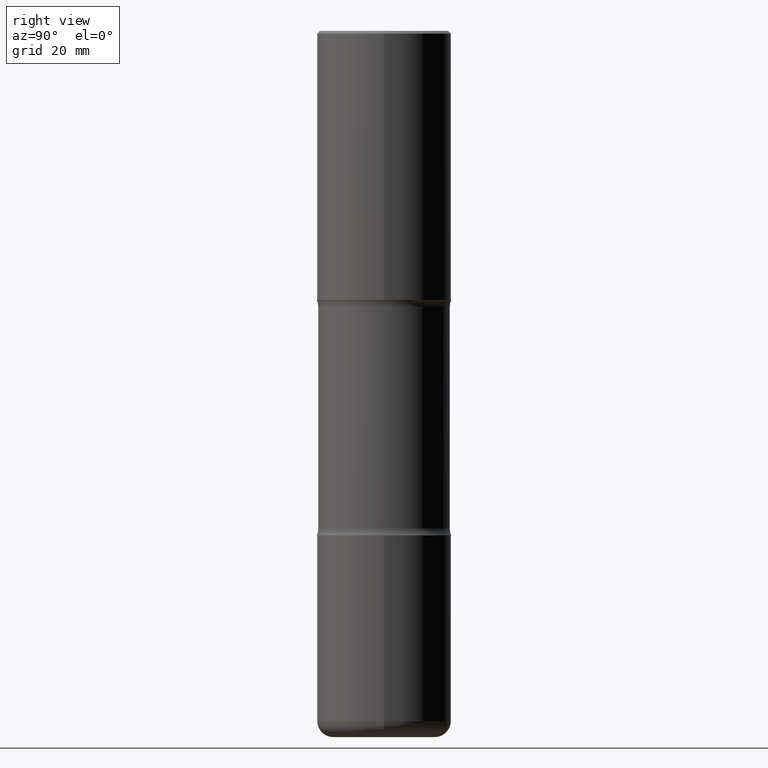
[diagram: clean part render]
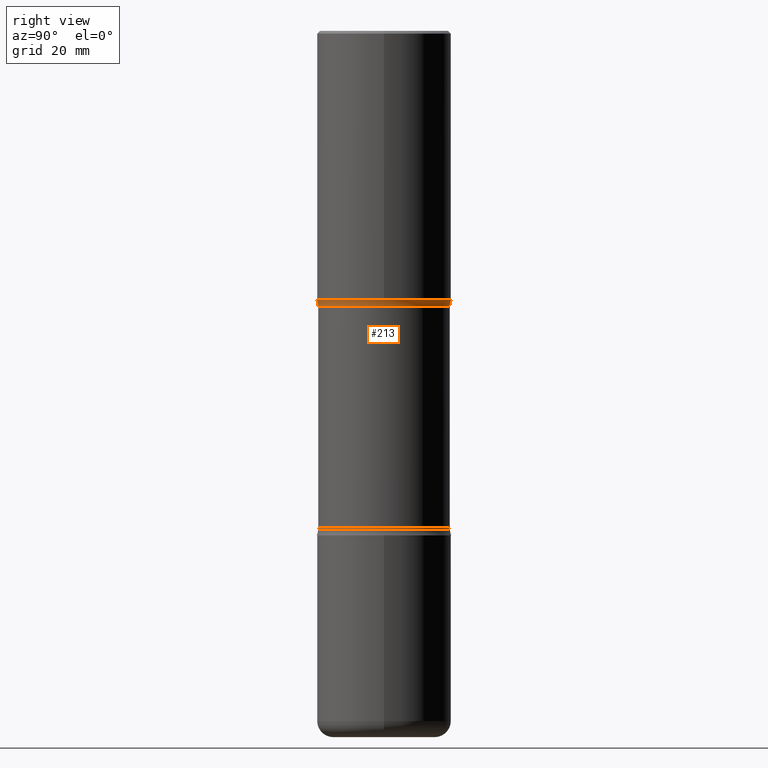
[diagram: same view with one face highlighted and labeled with its STEP entity id]
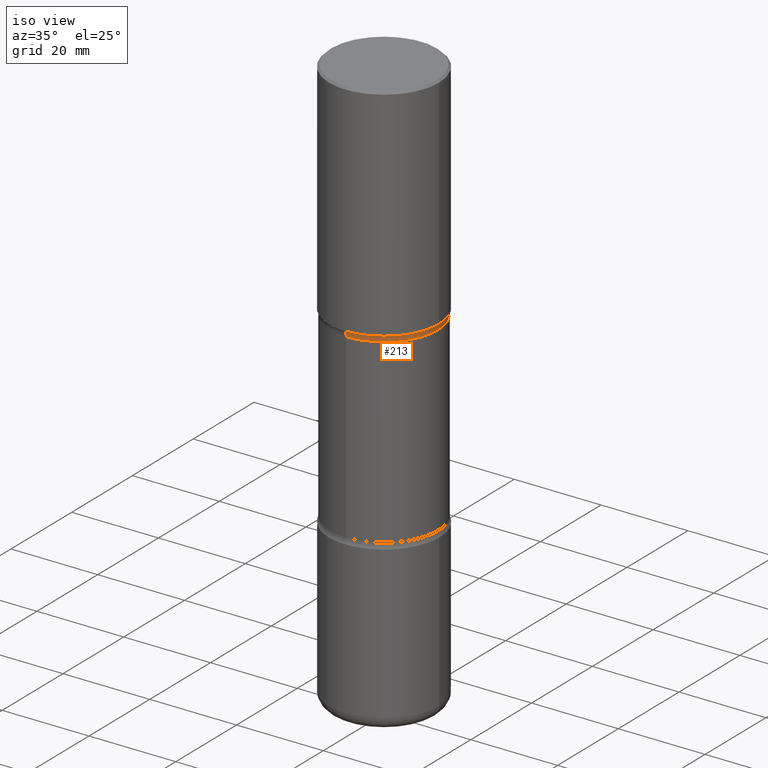
[diagram: same view with one face highlighted and labeled with its STEP entity id]
A machine part, right view. The second image highlights one B-rep face of the part: STEP entity #213.
A second angle (iso view) of the same face is appended — the face is thin or edge-on in the first view.
In plain terms, the highlighted toroidal blend (fillet) surface has major radius 15.5956 mm and minor (blend) radius 3.175 mm.
Its self-contained STEP definition (entity closure, byte-faithful):
#12 = EDGE_CURVE ( 'NONE', #409, #187, #298, .T. ) ;
#25 = ORIENTED_EDGE ( 'NONE', *, *, #12, .T. ) ;
#41 = EDGE_CURVE ( 'NONE', #187, #313, #367, .T. ) ;
#75 = DIRECTION ( 'NONE',  ( -6.982962677686265133E-15, -1.000000000000000000, 0.000000000000000000 ) ) ;
#77 = DIRECTION ( 'NONE',  ( 6.860497997771532351E-15, 1.000000000000000000, 0.000000000000000000 ) ) ;
#81 = DIRECTION ( 'NONE',  ( 2.477262793819919418E-29, -3.445950538948741294E-15, -1.000000000000000000 ) ) ;
#95 = CARTESIAN_POINT ( 'NONE',  ( 3.414668749388633741E-15, 0.4889999999999927738, -2.051273774973179975 ) ) ;
#119 = FACE_OUTER_BOUND ( 'NONE', #365, .T. ) ;
#120 = CIRCLE ( 'NONE', #186, 0.1250000000000000278 ) ;
#125 = CARTESIAN_POINT ( 'NONE',  ( -4.212345770631670782E-15, -0.6140000000000073177, -2.051273774973176423 ) ) ;
#147 = VERTEX_POINT ( 'NONE', #480 ) ;
#160 = DIRECTION ( 'NONE',  ( 6.982962677686266711E-15, 1.000000000000000000, -3.278217592397113101E-15 ) ) ;
#165 = DIRECTION ( 'NONE',  ( 2.477262793819919418E-29, -3.445950538948741294E-15, -1.000000000000000000 ) ) ;
#186 = AXIS2_PLACEMENT_3D ( 'NONE', #125, #467, #77 ) ;
#187 = VERTEX_POINT ( 'NONE', #203 ) ;
#195 = AXIS2_PLACEMENT_3D ( 'NONE', #208, #165, #160 ) ;
#203 = CARTESIAN_POINT ( 'NONE',  ( 3.491481338843185026E-15, 0.4999999999999934497, -2.000000000000002220 ) ) ;
#208 = CARTESIAN_POINT ( 'NONE',  ( 4.835298134009405219E-29, -7.062641577501501234E-15, -2.000000000000000444 ) ) ;
#213 = ADVANCED_FACE ( 'NONE', ( #119 ), #535, .F. ) ;
#218 = EDGE_CURVE ( 'NONE', #147, #313, #120, .T. ) ;
#283 = DIRECTION ( 'NONE',  ( 6.982962677686265133E-15, 1.000000000000000000, -3.351960728422408359E-15 ) ) ;
#286 = CARTESIAN_POINT ( 'NONE',  ( 4.287539084099417080E-15, 0.6139999999999927738, -2.051273774973180863 ) ) ;
#295 = DIRECTION ( 'NONE',  ( 6.982962677686265922E-15, 1.000000000000000000, -3.445950538948741294E-15 ) ) ;
#298 = CIRCLE ( 'NONE', #525, 0.1250000000000000278 ) ;
#313 = VERTEX_POINT ( 'NONE', #392 ) ;
#351 = AXIS2_PLACEMENT_3D ( 'NONE', #369, #538, #283 ) ;
#365 = EDGE_LOOP ( 'NONE', ( #533, #500, #25, #458 ) ) ;
#367 = CIRCLE ( 'NONE', #195, 0.5000000000000004441 ) ;
#369 = CARTESIAN_POINT ( 'NONE',  ( 4.962316749049152891E-29, -7.239328470004260161E-15, -2.051273774973178643 ) ) ;
#381 = DIRECTION ( 'NONE',  ( -1.000000000000000000, 6.982962677686265922E-15, -4.883557194083112901E-29 ) ) ;
#392 = CARTESIAN_POINT ( 'NONE',  ( -3.430248998885720422E-15, -0.5000000000000075495, -1.999999999999998890 ) ) ;
#409 = VERTEX_POINT ( 'NONE', #95 ) ;
#450 = AXIS2_PLACEMENT_3D ( 'NONE', #471, #81, #295 ) ;
#458 = ORIENTED_EDGE ( 'NONE', *, *, #41, .T. ) ;
#467 = DIRECTION ( 'NONE',  ( 1.000000000000000000, -6.860497997771530774E-15, 4.841356471107676355E-29 ) ) ;
#471 = CARTESIAN_POINT ( 'NONE',  ( 4.968635048190363157E-29, -7.230280306018793706E-15, -2.051273774973178643 ) ) ;
#480 = CARTESIAN_POINT ( 'NONE',  ( -3.392516259897975076E-15, -0.4890000000000072622, -2.051273774973176867 ) ) ;
#490 = EDGE_CURVE ( 'NONE', #409, #147, #520, .T. ) ;
#500 = ORIENTED_EDGE ( 'NONE', *, *, #490, .F. ) ;
#520 = CIRCLE ( 'NONE', #351, 0.4890000000000000457 ) ;
#525 = AXIS2_PLACEMENT_3D ( 'NONE', #286, #381, #75 ) ;
#533 = ORIENTED_EDGE ( 'NONE', *, *, #218, .F. ) ;
#535 = TOROIDAL_SURFACE ( 'NONE', #450, 0.6140000000000001013, 0.1250000000000000278 ) ;
#538 = DIRECTION ( 'NONE',  ( 2.477262793819919418E-29, -3.445950538948741294E-15, -1.000000000000000000 ) ) ;